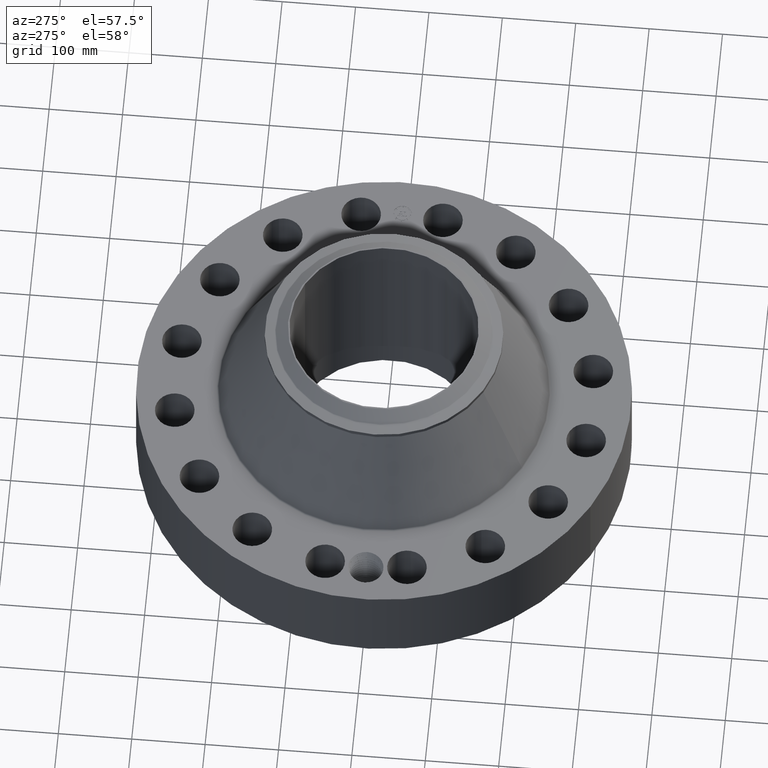
[diagram: clean part render]
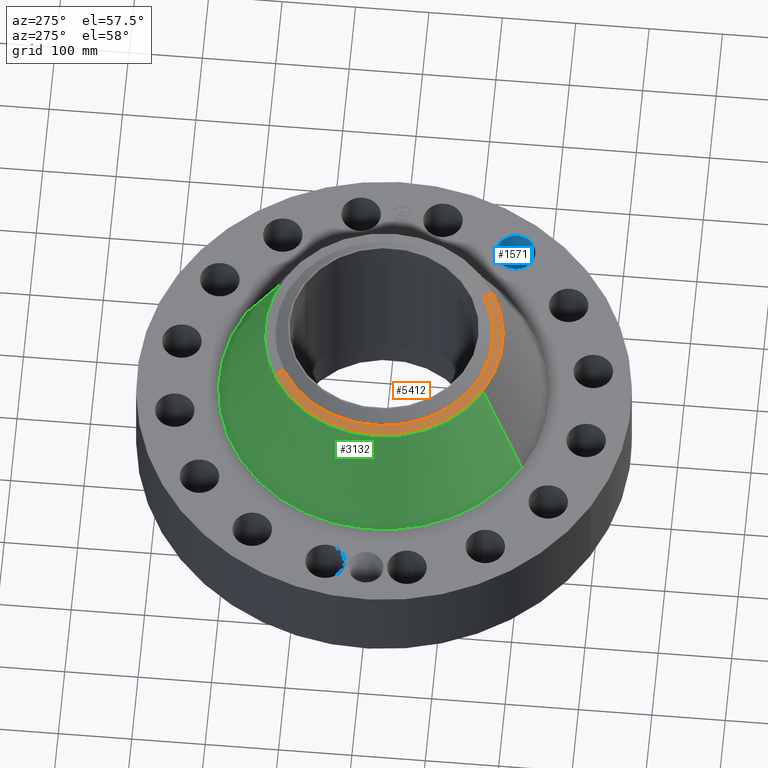
[diagram: same view with three faces highlighted in distinct colors, each labeled with its STEP entity id]
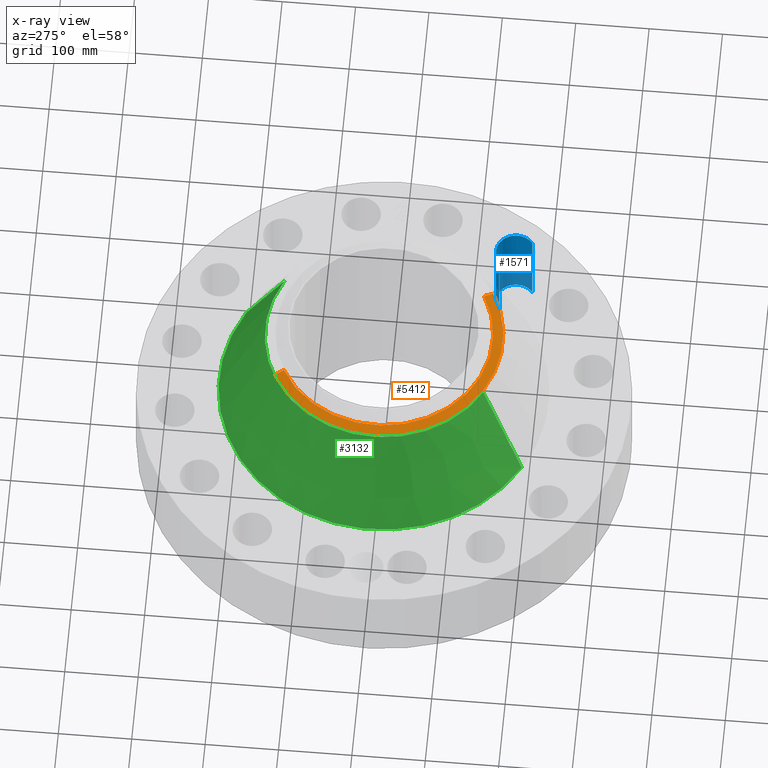
[diagram: x-ray of the same camera — body ghosted, the three highlighted faces saturated]
A machine part, auxiliary view with three faces highlighted in distinct colors.
The next image is the same camera in x-ray (body ghosted, the three faces saturated) — at least one of them is partly hidden behind the body in this view.
Their STEP definitions:

[orange] entity #5412 — the highlighted conical surface has half-angle 80 deg.
#3931=AXIS2_PLACEMENT_3D('Circle Axis2P3D',#3929,#3930,$) ;
#3944=AXIS2_PLACEMENT_3D('Circle Axis2P3D',#3942,#3943,$) ;
#4744=AXIS2_PLACEMENT_3D('Circle Axis2P3D',#4742,#4743,$) ;
#5385=AXIS2_PLACEMENT_3D('Cone Axis2P3D',#5382,#5383,#5384) ;
#3912=CARTESIAN_POINT('Vertex',(-3.05633780861,-5.59458883207,10.7569918296)) ;
#3926=CARTESIAN_POINT('Vertex',(3.05633780861,-5.59458883207,10.7569918296)) ;
#3929=CARTESIAN_POINT('Axis2P3D Location',(0.,0.,10.7569918296)) ;
#3942=CARTESIAN_POINT('Axis2P3D Location',(0.,0.,10.7569918296)) ;
#3946=CARTESIAN_POINT('Vertex',(-3.05633780861,5.59458883207,10.7569918296)) ;
#4739=CARTESIAN_POINT('Vertex',(-2.79960246501,5.12463793788,10.8514160193)) ;
#4742=CARTESIAN_POINT('Axis2P3D Location',(0.,0.,10.8514160193)) ;
#4746=CARTESIAN_POINT('Vertex',(2.79960246501,-5.12463793788,10.8514160193)) ;
#5382=CARTESIAN_POINT('Axis2P3D Location',(0.,0.,10.8514160193)) ;
#5387=CARTESIAN_POINT('Line Origine',(-2.92797013681,5.35961338497,10.8042039244)) ;
#5392=CARTESIAN_POINT('Line Origine',(2.92797013681,-5.35961338497,10.8042039244)) ;
#3930=DIRECTION('Axis2P3D Direction',(0.,0.,-0.0393700787402)) ;
#3943=DIRECTION('Axis2P3D Direction',(0.,0.,-0.0393700787402)) ;
#4743=DIRECTION('Axis2P3D Direction',(0.,0.,0.0393700787402)) ;
#5383=DIRECTION('Axis2P3D Direction',(-0.,-0.,-0.0393700787402)) ;
#5384=DIRECTION('Axis2P3D XDirection',(0.0188750212049,-0.0345504945626,0.)) ;
#5388=DIRECTION('Vector Direction',(-0.0185882672208,0.0340255949157,-0.00683654242783)) ;
#5393=DIRECTION('Vector Direction',(0.0185882672208,-0.0340255949157,-0.00683654242783)) ;
#5389=VECTOR('Line Direction',#5388,0.0393700787402) ;
#5394=VECTOR('Line Direction',#5393,0.0393700787402) ;
#5406=ORIENTED_EDGE('',*,*,#5396,.F.) ;
#5407=ORIENTED_EDGE('',*,*,#4748,.F.) ;
#5408=ORIENTED_EDGE('',*,*,#5391,.T.) ;
#5409=ORIENTED_EDGE('',*,*,#3948,.T.) ;
#5410=ORIENTED_EDGE('',*,*,#3933,.F.) ;
#5412=ADVANCED_FACE('PartBody',(#5411),#5386,.T.) ;
#3932=CIRCLE('generated circle',#3931,6.37500000003) ;
#3945=CIRCLE('generated circle',#3944,6.37500000003) ;
#4745=CIRCLE('generated circle',#4744,5.83949380995) ;
#5386=CONICAL_SURFACE('Cone',#5385,5.83949380995,1.3962634016) ;
#3933=EDGE_CURVE('',#3927,#3913,#3932,.T.) ;
#3948=EDGE_CURVE('',#3947,#3913,#3945,.F.) ;
#4748=EDGE_CURVE('',#4740,#4747,#4745,.T.) ;
#5391=EDGE_CURVE('',#4740,#3947,#5390,.T.) ;
#5396=EDGE_CURVE('',#4747,#3927,#5395,.T.) ;
#5405=EDGE_LOOP('',(#5406,#5407,#5408,#5409,#5410)) ;
#5411=FACE_OUTER_BOUND('',#5405,.T.) ;
#5390=LINE('Line',#5387,#5389) ;
#5395=LINE('Line',#5392,#5394) ;
#3913=VERTEX_POINT('',#3912) ;
#3927=VERTEX_POINT('',#3926) ;
#3947=VERTEX_POINT('',#3946) ;
#4740=VERTEX_POINT('',#4739) ;
#4747=VERTEX_POINT('',#4746) ;

[blue] entity #1571 — the highlighted cylindrical surface (edge-blend (fillet) strip) has radius 26.924 mm, axis along (0, -0, -1).
#280=AXIS2_PLACEMENT_3D('Circle Axis2P3D',#278,#279,$) ;
#762=AXIS2_PLACEMENT_3D('Circle Axis2P3D',#760,#761,$) ;
#1553=AXIS2_PLACEMENT_3D('Cylinder Axis2P3D',#1550,#1551,#1552) ;
#278=CARTESIAN_POINT('Axis2P3D Location',(9.35403313844,-6.2501651215,0.250000000001)) ;
#282=CARTESIAN_POINT('Vertex',(8.68908204072,-5.42467130708,0.250000000001)) ;
#284=CARTESIAN_POINT('Vertex',(10.0189842362,-7.07565893591,0.250000000001)) ;
#755=CARTESIAN_POINT('Vertex',(10.0189842362,-7.07565893591,5.13000000002)) ;
#757=CARTESIAN_POINT('Vertex',(8.68908204072,-5.42467130708,5.13000000002)) ;
#760=CARTESIAN_POINT('Axis2P3D Location',(9.35403313844,-6.2501651215,5.13000000002)) ;
#1550=CARTESIAN_POINT('Axis2P3D Location',(9.35403313844,-6.2501651215,5.12606299215)) ;
#1555=CARTESIAN_POINT('Line Origine',(8.68908204072,-5.42467130708,2.69000000001)) ;
#1560=CARTESIAN_POINT('Line Origine',(10.0189842362,-7.07565893591,2.69000000001)) ;
#279=DIRECTION('Axis2P3D Direction',(0.,0.,-0.0393700787402)) ;
#761=DIRECTION('Axis2P3D Direction',(0.,0.,-0.0393700787402)) ;
#1551=DIRECTION('Axis2P3D Direction',(0.,-0.,-0.0393700787402)) ;
#1552=DIRECTION('Axis2P3D XDirection',(0.0246973368639,-0.030660147616,0.)) ;
#1556=DIRECTION('Vector Direction',(0.,0.,-0.0393700787402)) ;
#1561=DIRECTION('Vector Direction',(0.,0.,-0.0393700787402)) ;
#1557=VECTOR('Line Direction',#1556,0.0393700787402) ;
#1562=VECTOR('Line Direction',#1561,0.0393700787402) ;
#1566=ORIENTED_EDGE('',*,*,#1559,.F.) ;
#1567=ORIENTED_EDGE('',*,*,#286,.T.) ;
#1568=ORIENTED_EDGE('',*,*,#1564,.T.) ;
#1569=ORIENTED_EDGE('',*,*,#764,.F.) ;
#1571=ADVANCED_FACE('PartBody',(#1570),#1554,.F.) ;
#281=CIRCLE('generated circle',#280,1.06) ;
#763=CIRCLE('generated circle',#762,1.06) ;
#1554=CYLINDRICAL_SURFACE('generated cylinder',#1553,1.06) ;
#286=EDGE_CURVE('',#283,#285,#281,.T.) ;
#764=EDGE_CURVE('',#758,#756,#763,.T.) ;
#1559=EDGE_CURVE('',#283,#758,#1558,.F.) ;
#1564=EDGE_CURVE('',#285,#756,#1563,.F.) ;
#1565=EDGE_LOOP('',(#1566,#1567,#1568,#1569)) ;
#1570=FACE_OUTER_BOUND('',#1565,.T.) ;
#1558=LINE('Line',#1555,#1557) ;
#1563=LINE('Line',#1560,#1562) ;
#283=VERTEX_POINT('',#282) ;
#285=VERTEX_POINT('',#284) ;
#756=VERTEX_POINT('',#755) ;
#758=VERTEX_POINT('',#757) ;

[green] entity #3132 — the highlighted conical surface has half-angle 24.88 deg.
#2378=AXIS2_PLACEMENT_3D('Circle Axis2P3D',#2376,#2377,$) ;
#3093=AXIS2_PLACEMENT_3D('Cone Axis2P3D',#3090,#3091,#3092) ;
#3123=AXIS2_PLACEMENT_3D('Circle Axis2P3D',#3121,#3122,$) ;
#2354=CARTESIAN_POINT('Vertex',(4.23944614453,7.76025411442,5.19951413071)) ;
#2361=CARTESIAN_POINT('Vertex',(-4.23944614453,-7.76025411442,5.19951413071)) ;
#2376=CARTESIAN_POINT('Axis2P3D Location',(0.,0.,5.19951413071)) ;
#3090=CARTESIAN_POINT('Axis2P3D Location',(0.,0.,10.5207713572)) ;
#3095=CARTESIAN_POINT('Line Origine',(3.64789197657,6.67742147325,7.86014274394)) ;
#3099=CARTESIAN_POINT('Vertex',(3.05633780861,5.59458883207,10.5207713572)) ;
#3106=CARTESIAN_POINT('Vertex',(-3.05633780861,-5.59458883207,10.5207713572)) ;
#3109=CARTESIAN_POINT('Line Origine',(-3.64789197657,-6.67742147325,7.86014274394)) ;
#3121=CARTESIAN_POINT('Axis2P3D Location',(0.,0.,10.5207713572)) ;
#2377=DIRECTION('Axis2P3D Direction',(0.,0.,-0.0393700787402)) ;
#3091=DIRECTION('Axis2P3D Direction',(0.,0.,-0.0393700787402)) ;
#3092=DIRECTION('Axis2P3D XDirection',(-0.0188750212049,-0.0345504945626,0.)) ;
#3096=DIRECTION('Vector Direction',(0.0079410154484,0.0145359312762,-0.0357162438617)) ;
#3110=DIRECTION('Vector Direction',(-0.0079410154484,-0.0145359312762,-0.0357162438617)) ;
#3122=DIRECTION('Axis2P3D Direction',(0.,0.,-0.0393700787402)) ;
#3097=VECTOR('Line Direction',#3096,0.0393700787402) ;
#3111=VECTOR('Line Direction',#3110,0.0393700787402) ;
#3127=ORIENTED_EDGE('',*,*,#2380,.F.) ;
#3128=ORIENTED_EDGE('',*,*,#3113,.T.) ;
#3129=ORIENTED_EDGE('',*,*,#3125,.T.) ;
#3130=ORIENTED_EDGE('',*,*,#3101,.F.) ;
#3132=ADVANCED_FACE('PartBody',(#3131),#3094,.T.) ;
#2379=CIRCLE('generated circle',#2378,8.84276243787) ;
#3124=CIRCLE('generated circle',#3123,6.37500000003) ;
#3094=CONICAL_SURFACE('Cone',#3093,6.37500000003,0.434233958387) ;
#2380=EDGE_CURVE('',#2362,#2355,#2379,.T.) ;
#3101=EDGE_CURVE('',#2355,#3100,#3098,.F.) ;
#3113=EDGE_CURVE('',#2362,#3107,#3112,.F.) ;
#3125=EDGE_CURVE('',#3107,#3100,#3124,.T.) ;
#3126=EDGE_LOOP('',(#3127,#3128,#3129,#3130)) ;
#3131=FACE_OUTER_BOUND('',#3126,.T.) ;
#3098=LINE('Line',#3095,#3097) ;
#3112=LINE('Line',#3109,#3111) ;
#2355=VERTEX_POINT('',#2354) ;
#2362=VERTEX_POINT('',#2361) ;
#3100=VERTEX_POINT('',#3099) ;
#3107=VERTEX_POINT('',#3106) ;